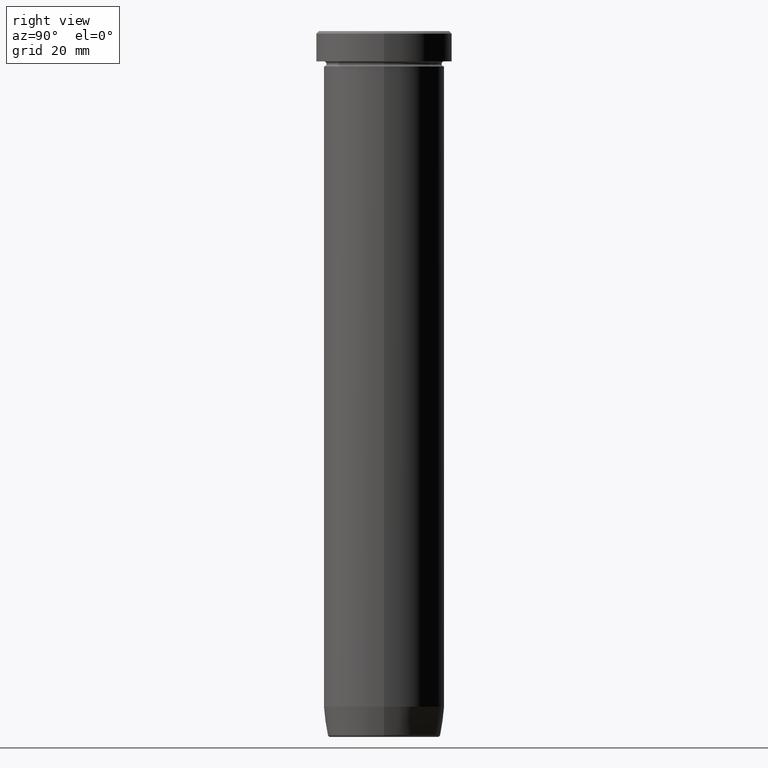
[diagram: clean part render]
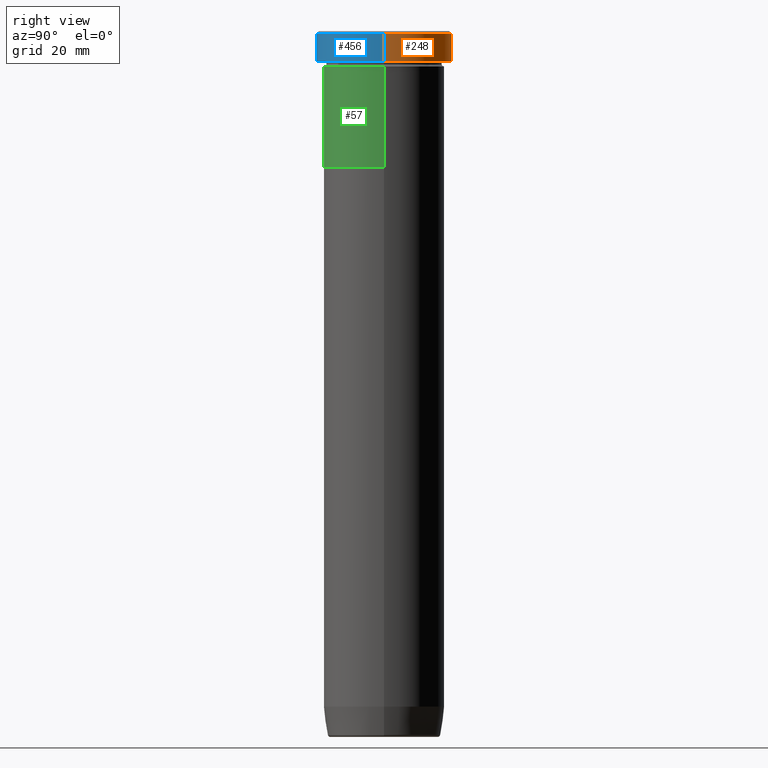
[diagram: same view with three faces highlighted in distinct colors, each labeled with its STEP entity id]
A machine part, right view with three faces highlighted in distinct colors.
Their STEP definitions:

[orange] entity #248 — the highlighted cylindrical surface (partial cylindrical patch) has radius 13.5 mm, axis along (-0, -0, 1).
#29 = CARTESIAN_POINT ( 'NONE',  ( 0.000000000000000000, 0.000000000000000000, -5.999999999999999112 ) ) ;
#33 = LINE ( 'NONE', #274, #482 ) ;
#39 = VERTEX_POINT ( 'NONE', #69 ) ;
#41 = VERTEX_POINT ( 'NONE', #427 ) ;
#69 = CARTESIAN_POINT ( 'NONE',  ( 13.50000000000000000, 0.000000000000000000, -0.5000000000000091038 ) ) ;
#73 = DIRECTION ( 'NONE',  ( -0.000000000000000000, -0.000000000000000000, 1.000000000000000000 ) ) ;
#78 = DIRECTION ( 'NONE',  ( 1.000000000000000000, 0.000000000000000000, 0.000000000000000000 ) ) ;
#131 = CARTESIAN_POINT ( 'NONE',  ( 0.000000000000000000, 0.000000000000000000, 0.000000000000000000 ) ) ;
#132 = EDGE_LOOP ( 'NONE', ( #542, #421, #330, #200 ) ) ;
#156 = VERTEX_POINT ( 'NONE', #302 ) ;
#188 = EDGE_CURVE ( 'NONE', #41, #39, #33, .T. ) ;
#196 = AXIS2_PLACEMENT_3D ( 'NONE', #29, #354, #356 ) ;
#200 = ORIENTED_EDGE ( 'NONE', *, *, #188, .F. ) ;
#209 = EDGE_CURVE ( 'NONE', #156, #39, #561, .T. ) ;
#224 = CYLINDRICAL_SURFACE ( 'NONE', #259, 13.50000000000000000 ) ;
#227 = DIRECTION ( 'NONE',  ( -0.000000000000000000, -0.000000000000000000, 1.000000000000000000 ) ) ;
#248 = ADVANCED_FACE ( 'NONE', ( #401 ), #224, .T. ) ;
#259 = AXIS2_PLACEMENT_3D ( 'NONE', #131, #73, #78 ) ;
#274 = CARTESIAN_POINT ( 'NONE',  ( 13.50000000000000000, 0.000000000000000000, 0.000000000000000000 ) ) ;
#276 = EDGE_CURVE ( 'NONE', #41, #321, #533, .T. ) ;
#281 = VECTOR ( 'NONE', #507, 1000.000000000000000 ) ;
#302 = CARTESIAN_POINT ( 'NONE',  ( -13.50000000000000000, 1.653273178848926867E-15, -0.5000000000000091038 ) ) ;
#305 = AXIS2_PLACEMENT_3D ( 'NONE', #403, #440, #314 ) ;
#314 = DIRECTION ( 'NONE',  ( 1.000000000000000000, 0.000000000000000000, 0.000000000000000000 ) ) ;
#321 = VERTEX_POINT ( 'NONE', #537 ) ;
#325 = CARTESIAN_POINT ( 'NONE',  ( -13.50000000000000000, 1.653273178848926867E-15, 0.000000000000000000 ) ) ;
#330 = ORIENTED_EDGE ( 'NONE', *, *, #209, .T. ) ;
#332 = EDGE_CURVE ( 'NONE', #321, #156, #550, .T. ) ;
#354 = DIRECTION ( 'NONE',  ( -0.000000000000000000, -0.000000000000000000, 1.000000000000000000 ) ) ;
#356 = DIRECTION ( 'NONE',  ( 1.000000000000000000, 0.000000000000000000, 0.000000000000000000 ) ) ;
#401 = FACE_OUTER_BOUND ( 'NONE', #132, .T. ) ;
#403 = CARTESIAN_POINT ( 'NONE',  ( 0.000000000000000000, 0.000000000000000000, -0.5000000000000091038 ) ) ;
#421 = ORIENTED_EDGE ( 'NONE', *, *, #332, .T. ) ;
#427 = CARTESIAN_POINT ( 'NONE',  ( 13.50000000000000000, 0.000000000000000000, -5.999999999999999112 ) ) ;
#440 = DIRECTION ( 'NONE',  ( 0.000000000000000000, 0.000000000000000000, -1.000000000000000000 ) ) ;
#482 = VECTOR ( 'NONE', #227, 1000.000000000000000 ) ;
#507 = DIRECTION ( 'NONE',  ( -0.000000000000000000, -0.000000000000000000, 1.000000000000000000 ) ) ;
#533 = CIRCLE ( 'NONE', #196, 13.50000000000000000 ) ;
#537 = CARTESIAN_POINT ( 'NONE',  ( -13.50000000000000000, 1.653273178848926867E-15, -5.999999999999999112 ) ) ;
#542 = ORIENTED_EDGE ( 'NONE', *, *, #276, .T. ) ;
#550 = LINE ( 'NONE', #325, #281 ) ;
#561 = CIRCLE ( 'NONE', #305, 13.50000000000000000 ) ;

[blue] entity #456 — the highlighted cylindrical surface (partial cylindrical patch) has radius 13.5 mm, axis along (-0, -0, 1).
#9 = FACE_OUTER_BOUND ( 'NONE', #508, .T. ) ;
#33 = LINE ( 'NONE', #274, #482 ) ;
#39 = VERTEX_POINT ( 'NONE', #69 ) ;
#41 = VERTEX_POINT ( 'NONE', #427 ) ;
#48 = CARTESIAN_POINT ( 'NONE',  ( 0.000000000000000000, 0.000000000000000000, 0.000000000000000000 ) ) ;
#56 = ORIENTED_EDGE ( 'NONE', *, *, #437, .T. ) ;
#58 = CYLINDRICAL_SURFACE ( 'NONE', #425, 13.50000000000000000 ) ;
#69 = CARTESIAN_POINT ( 'NONE',  ( 13.50000000000000000, 0.000000000000000000, -0.5000000000000091038 ) ) ;
#74 = EDGE_CURVE ( 'NONE', #39, #156, #512, .T. ) ;
#77 = ORIENTED_EDGE ( 'NONE', *, *, #188, .T. ) ;
#148 = DIRECTION ( 'NONE',  ( -0.000000000000000000, -0.000000000000000000, 1.000000000000000000 ) ) ;
#156 = VERTEX_POINT ( 'NONE', #302 ) ;
#188 = EDGE_CURVE ( 'NONE', #41, #39, #33, .T. ) ;
#227 = DIRECTION ( 'NONE',  ( -0.000000000000000000, -0.000000000000000000, 1.000000000000000000 ) ) ;
#244 = DIRECTION ( 'NONE',  ( -0.000000000000000000, -0.000000000000000000, 1.000000000000000000 ) ) ;
#269 = AXIS2_PLACEMENT_3D ( 'NONE', #527, #385, #571 ) ;
#274 = CARTESIAN_POINT ( 'NONE',  ( 13.50000000000000000, 0.000000000000000000, 0.000000000000000000 ) ) ;
#279 = CARTESIAN_POINT ( 'NONE',  ( 0.000000000000000000, 0.000000000000000000, -5.999999999999999112 ) ) ;
#281 = VECTOR ( 'NONE', #507, 1000.000000000000000 ) ;
#296 = ORIENTED_EDGE ( 'NONE', *, *, #332, .F. ) ;
#302 = CARTESIAN_POINT ( 'NONE',  ( -13.50000000000000000, 1.653273178848926867E-15, -0.5000000000000091038 ) ) ;
#321 = VERTEX_POINT ( 'NONE', #537 ) ;
#325 = CARTESIAN_POINT ( 'NONE',  ( -13.50000000000000000, 1.653273178848926867E-15, 0.000000000000000000 ) ) ;
#332 = EDGE_CURVE ( 'NONE', #321, #156, #550, .T. ) ;
#349 = CIRCLE ( 'NONE', #415, 13.50000000000000000 ) ;
#385 = DIRECTION ( 'NONE',  ( 0.000000000000000000, 0.000000000000000000, -1.000000000000000000 ) ) ;
#415 = AXIS2_PLACEMENT_3D ( 'NONE', #279, #148, #460 ) ;
#420 = DIRECTION ( 'NONE',  ( 1.000000000000000000, 0.000000000000000000, 0.000000000000000000 ) ) ;
#425 = AXIS2_PLACEMENT_3D ( 'NONE', #48, #244, #420 ) ;
#427 = CARTESIAN_POINT ( 'NONE',  ( 13.50000000000000000, 0.000000000000000000, -5.999999999999999112 ) ) ;
#437 = EDGE_CURVE ( 'NONE', #321, #41, #349, .T. ) ;
#456 = ADVANCED_FACE ( 'NONE', ( #9 ), #58, .T. ) ;
#460 = DIRECTION ( 'NONE',  ( 1.000000000000000000, 0.000000000000000000, 0.000000000000000000 ) ) ;
#482 = VECTOR ( 'NONE', #227, 1000.000000000000000 ) ;
#507 = DIRECTION ( 'NONE',  ( -0.000000000000000000, -0.000000000000000000, 1.000000000000000000 ) ) ;
#508 = EDGE_LOOP ( 'NONE', ( #296, #56, #77, #548 ) ) ;
#512 = CIRCLE ( 'NONE', #269, 13.50000000000000000 ) ;
#527 = CARTESIAN_POINT ( 'NONE',  ( 0.000000000000000000, 0.000000000000000000, -0.5000000000000091038 ) ) ;
#537 = CARTESIAN_POINT ( 'NONE',  ( -13.50000000000000000, 1.653273178848926867E-15, -5.999999999999999112 ) ) ;
#548 = ORIENTED_EDGE ( 'NONE', *, *, #74, .T. ) ;
#550 = LINE ( 'NONE', #325, #281 ) ;
#571 = DIRECTION ( 'NONE',  ( 1.000000000000000000, 0.000000000000000000, 0.000000000000000000 ) ) ;

[green] entity #57 — the highlighted cylindrical surface (partial cylindrical patch) has radius 12 mm, axis along (-0, -0, 1).
#4 = VECTOR ( 'NONE', #552, 1000.000000000000000 ) ;
#55 = LINE ( 'NONE', #89, #4 ) ;
#57 = ADVANCED_FACE ( 'NONE', ( #216 ), #343, .T. ) ;
#59 = VERTEX_POINT ( 'NONE', #577 ) ;
#63 = CARTESIAN_POINT ( 'NONE',  ( 0.000000000000000000, 0.000000000000000000, -27.00000000000000000 ) ) ;
#66 = DIRECTION ( 'NONE',  ( -0.000000000000000000, -0.000000000000000000, 1.000000000000000000 ) ) ;
#89 = CARTESIAN_POINT ( 'NONE',  ( -12.00000000000000000, 1.469576158976823947E-15, 0.000000000000000000 ) ) ;
#93 = DIRECTION ( 'NONE',  ( -0.000000000000000000, -0.000000000000000000, 1.000000000000000000 ) ) ;
#100 = ORIENTED_EDGE ( 'NONE', *, *, #375, .F. ) ;
#118 = DIRECTION ( 'NONE',  ( -0.000000000000000000, -0.000000000000000000, 1.000000000000000000 ) ) ;
#140 = EDGE_CURVE ( 'NONE', #591, #59, #443, .T. ) ;
#146 = CARTESIAN_POINT ( 'NONE',  ( 12.00000000000000000, 0.000000000000000000, -7.000000000000000000 ) ) ;
#173 = ORIENTED_EDGE ( 'NONE', *, *, #140, .T. ) ;
#216 = FACE_OUTER_BOUND ( 'NONE', #243, .T. ) ;
#222 = AXIS2_PLACEMENT_3D ( 'NONE', #342, #66, #516 ) ;
#236 = CARTESIAN_POINT ( 'NONE',  ( 12.00000000000000000, 0.000000000000000000, 0.000000000000000000 ) ) ;
#239 = ORIENTED_EDGE ( 'NONE', *, *, #410, .T. ) ;
#243 = EDGE_LOOP ( 'NONE', ( #100, #173, #239, #419 ) ) ;
#250 = AXIS2_PLACEMENT_3D ( 'NONE', #63, #529, #253 ) ;
#253 = DIRECTION ( 'NONE',  ( 1.000000000000000000, 0.000000000000000000, 0.000000000000000000 ) ) ;
#301 = CARTESIAN_POINT ( 'NONE',  ( -12.00000000000000000, 1.469576158976823947E-15, -7.000000000000000000 ) ) ;
#316 = CIRCLE ( 'NONE', #222, 12.00000000000000000 ) ;
#339 = VECTOR ( 'NONE', #93, 1000.000000000000000 ) ;
#342 = CARTESIAN_POINT ( 'NONE',  ( 0.000000000000000000, 0.000000000000000000, -7.000000000000000000 ) ) ;
#343 = CYLINDRICAL_SURFACE ( 'NONE', #424, 12.00000000000000000 ) ;
#375 = EDGE_CURVE ( 'NONE', #591, #598, #55, .T. ) ;
#381 = DIRECTION ( 'NONE',  ( 1.000000000000000000, 0.000000000000000000, 0.000000000000000000 ) ) ;
#391 = CARTESIAN_POINT ( 'NONE',  ( 0.000000000000000000, 0.000000000000000000, 0.000000000000000000 ) ) ;
#410 = EDGE_CURVE ( 'NONE', #59, #458, #503, .T. ) ;
#419 = ORIENTED_EDGE ( 'NONE', *, *, #519, .F. ) ;
#424 = AXIS2_PLACEMENT_3D ( 'NONE', #391, #118, #381 ) ;
#436 = CARTESIAN_POINT ( 'NONE',  ( -12.00000000000000000, 1.469576158976823947E-15, -27.00000000000000000 ) ) ;
#443 = CIRCLE ( 'NONE', #250, 12.00000000000000000 ) ;
#458 = VERTEX_POINT ( 'NONE', #146 ) ;
#503 = LINE ( 'NONE', #236, #339 ) ;
#516 = DIRECTION ( 'NONE',  ( 1.000000000000000000, 0.000000000000000000, 0.000000000000000000 ) ) ;
#519 = EDGE_CURVE ( 'NONE', #598, #458, #316, .T. ) ;
#529 = DIRECTION ( 'NONE',  ( -0.000000000000000000, -0.000000000000000000, 1.000000000000000000 ) ) ;
#552 = DIRECTION ( 'NONE',  ( -0.000000000000000000, -0.000000000000000000, 1.000000000000000000 ) ) ;
#577 = CARTESIAN_POINT ( 'NONE',  ( 12.00000000000000000, 0.000000000000000000, -27.00000000000000000 ) ) ;
#591 = VERTEX_POINT ( 'NONE', #436 ) ;
#598 = VERTEX_POINT ( 'NONE', #301 ) ;